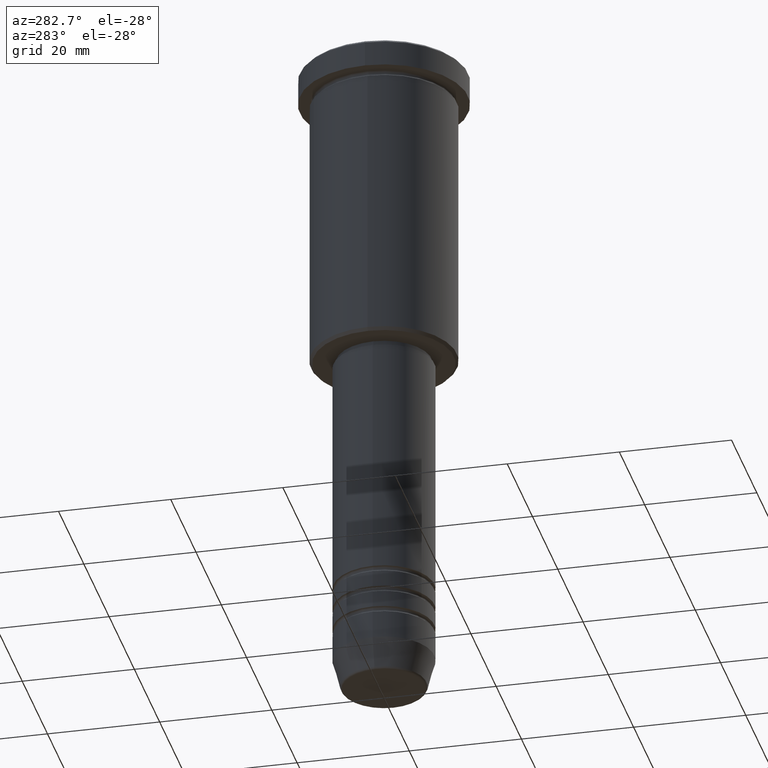
[diagram: clean part render]
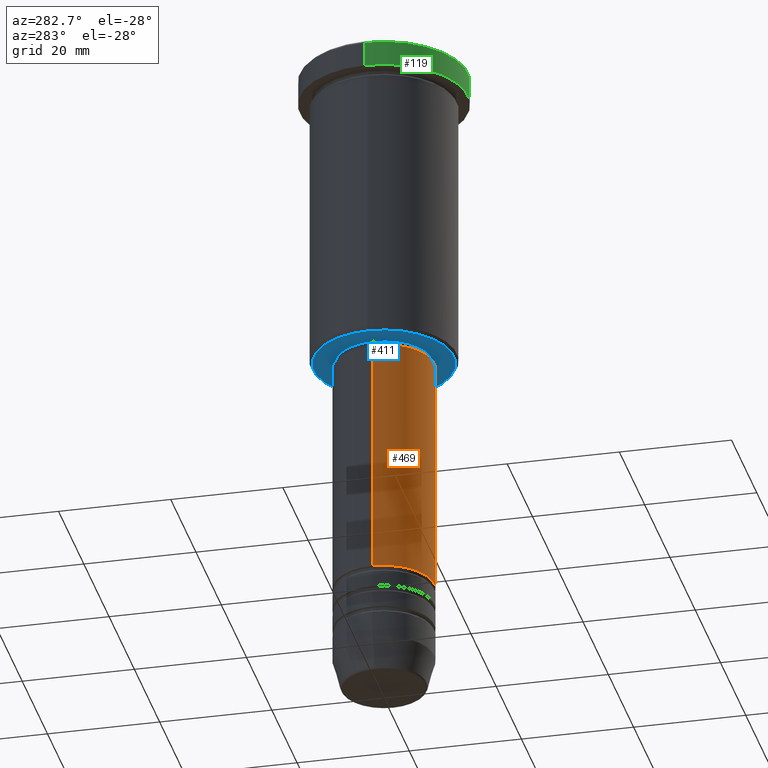
[diagram: same view with three faces highlighted in distinct colors, each labeled with its STEP entity id]
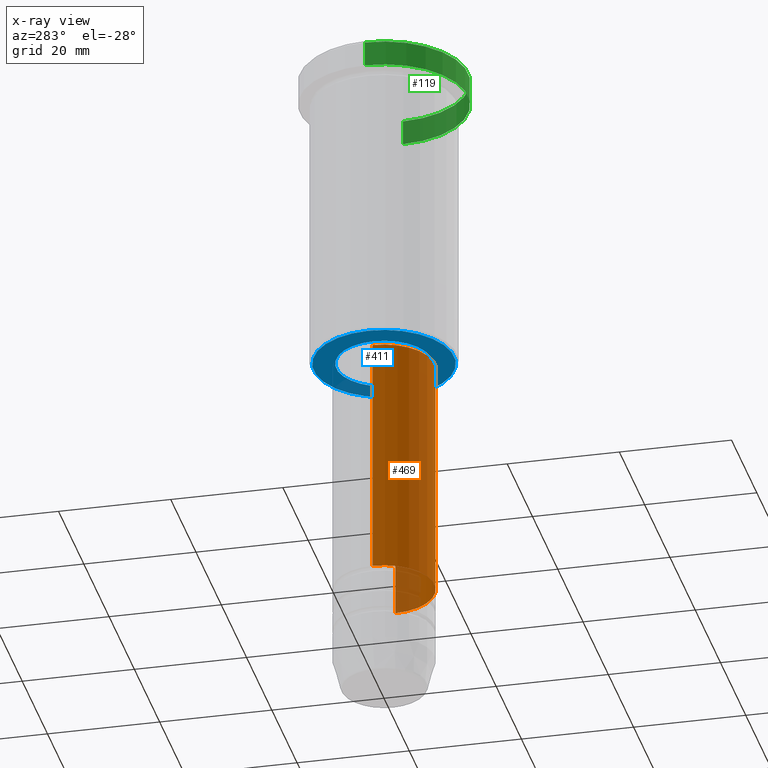
[diagram: x-ray of the same camera — body ghosted, the three highlighted faces saturated]
A machine part, auxiliary view with three faces highlighted in distinct colors.
The next image is the same camera in x-ray (body ghosted, the three faces saturated) — at least one of them is partly hidden behind the body in this view.
Their STEP definitions:

[orange] entity #469 — the highlighted cylindrical surface (partial cylindrical patch) has radius 9 mm, axis along (-0, -0, 1).
#29 = VECTOR ( 'NONE', #319, 1000.000000000000000 ) ;
#46 = LINE ( 'NONE', #405, #29 ) ;
#72 = DIRECTION ( 'NONE',  ( -0.000000000000000000, -0.000000000000000000, 1.000000000000000000 ) ) ;
#77 = CARTESIAN_POINT ( 'NONE',  ( -8.999999999999998224, 1.102182119232617714E-15, -57.00000000000002842 ) ) ;
#143 = EDGE_CURVE ( 'NONE', #553, #1104, #785, .T. ) ;
#144 = DIRECTION ( 'NONE',  ( -0.000000000000000000, -0.000000000000000000, 1.000000000000000000 ) ) ;
#216 = LINE ( 'NONE', #753, #494 ) ;
#233 = EDGE_CURVE ( 'NONE', #1092, #1104, #46, .T. ) ;
#308 = DIRECTION ( 'NONE',  ( -0.000000000000000000, -0.000000000000000000, 1.000000000000000000 ) ) ;
#319 = DIRECTION ( 'NONE',  ( -0.000000000000000000, -0.000000000000000000, 1.000000000000000000 ) ) ;
#337 = AXIS2_PLACEMENT_3D ( 'NONE', #866, #144, #417 ) ;
#348 = ORIENTED_EDGE ( 'NONE', *, *, #143, .F. ) ;
#349 = CARTESIAN_POINT ( 'NONE',  ( -9.000000000000001776, 1.102182119232617911E-15, -100.4999999999999716 ) ) ;
#357 = ORIENTED_EDGE ( 'NONE', *, *, #507, .T. ) ;
#394 = FACE_OUTER_BOUND ( 'NONE', #518, .T. ) ;
#405 = CARTESIAN_POINT ( 'NONE',  ( 9.000000000000000000, 0.000000000000000000, 0.000000000000000000 ) ) ;
#417 = DIRECTION ( 'NONE',  ( 1.000000000000000000, 0.000000000000000000, 0.000000000000000000 ) ) ;
#426 = CARTESIAN_POINT ( 'NONE',  ( 0.000000000000000000, 0.000000000000000000, -100.4999999999999716 ) ) ;
#469 = ADVANCED_FACE ( 'NONE', ( #394 ), #1048, .T. ) ;
#494 = VECTOR ( 'NONE', #929, 1000.000000000000000 ) ;
#507 = EDGE_CURVE ( 'NONE', #1026, #1092, #981, .T. ) ;
#518 = EDGE_LOOP ( 'NONE', ( #872, #357, #768, #348 ) ) ;
#534 = CARTESIAN_POINT ( 'NONE',  ( 8.999999999999998224, 0.000000000000000000, -57.00000000000002842 ) ) ;
#553 = VERTEX_POINT ( 'NONE', #77 ) ;
#621 = AXIS2_PLACEMENT_3D ( 'NONE', #426, #72, #982 ) ;
#753 = CARTESIAN_POINT ( 'NONE',  ( -9.000000000000000000, 1.102182119232617714E-15, 0.000000000000000000 ) ) ;
#768 = ORIENTED_EDGE ( 'NONE', *, *, #233, .T. ) ;
#785 = CIRCLE ( 'NONE', #879, 8.999999999999998224 ) ;
#835 = EDGE_CURVE ( 'NONE', #1026, #553, #216, .T. ) ;
#866 = CARTESIAN_POINT ( 'NONE',  ( 0.000000000000000000, 0.000000000000000000, 0.000000000000000000 ) ) ;
#867 = CARTESIAN_POINT ( 'NONE',  ( 0.000000000000000000, 0.000000000000000000, -57.00000000000002842 ) ) ;
#872 = ORIENTED_EDGE ( 'NONE', *, *, #835, .F. ) ;
#879 = AXIS2_PLACEMENT_3D ( 'NONE', #867, #308, #1042 ) ;
#929 = DIRECTION ( 'NONE',  ( -0.000000000000000000, -0.000000000000000000, 1.000000000000000000 ) ) ;
#981 = CIRCLE ( 'NONE', #621, 9.000000000000001776 ) ;
#982 = DIRECTION ( 'NONE',  ( 1.000000000000000000, 0.000000000000000000, 0.000000000000000000 ) ) ;
#991 = CARTESIAN_POINT ( 'NONE',  ( 9.000000000000001776, 0.000000000000000000, -100.4999999999999716 ) ) ;
#1026 = VERTEX_POINT ( 'NONE', #349 ) ;
#1042 = DIRECTION ( 'NONE',  ( 1.000000000000000000, 0.000000000000000000, 0.000000000000000000 ) ) ;
#1048 = CYLINDRICAL_SURFACE ( 'NONE', #337, 9.000000000000000000 ) ;
#1092 = VERTEX_POINT ( 'NONE', #991 ) ;
#1104 = VERTEX_POINT ( 'NONE', #534 ) ;

[blue] entity #411 — the highlighted planar face has unit normal (0, 0, -1).
#63 = VERTEX_POINT ( 'NONE', #384 ) ;
#74 = DIRECTION ( 'NONE',  ( -0.000000000000000000, -0.000000000000000000, 1.000000000000000000 ) ) ;
#80 = CARTESIAN_POINT ( 'NONE',  ( 0.000000000000000000, 0.000000000000000000, -56.00000000000000711 ) ) ;
#107 = EDGE_CURVE ( 'NONE', #615, #63, #1172, .T. ) ;
#141 = CARTESIAN_POINT ( 'NONE',  ( 0.000000000000000000, 0.000000000000000000, -56.00000000000000711 ) ) ;
#157 = CARTESIAN_POINT ( 'NONE',  ( 12.49999999999999645, 0.000000000000000000, -56.00000000000000711 ) ) ;
#159 = VERTEX_POINT ( 'NONE', #497 ) ;
#166 = AXIS2_PLACEMENT_3D ( 'NONE', #849, #402, #686 ) ;
#195 = DIRECTION ( 'NONE',  ( -1.000000000000000000, 0.000000000000000000, 0.000000000000000000 ) ) ;
#223 = AXIS2_PLACEMENT_3D ( 'NONE', #141, #1133, #593 ) ;
#227 = EDGE_CURVE ( 'NONE', #159, #315, #468, .T. ) ;
#230 = ORIENTED_EDGE ( 'NONE', *, *, #1051, .T. ) ;
#240 = DIRECTION ( 'NONE',  ( -1.000000000000000000, 0.000000000000000000, -0.000000000000000000 ) ) ;
#265 = CIRCLE ( 'NONE', #883, 8.500000000000000000 ) ;
#300 = FACE_OUTER_BOUND ( 'NONE', #798, .T. ) ;
#313 = DIRECTION ( 'NONE',  ( 0.000000000000000000, 0.000000000000000000, -1.000000000000000000 ) ) ;
#315 = VERTEX_POINT ( 'NONE', #638 ) ;
#330 = ORIENTED_EDGE ( 'NONE', *, *, #227, .T. ) ;
#384 = CARTESIAN_POINT ( 'NONE',  ( -12.49999999999999645, 1.561424668912875308E-15, -56.00000000000000711 ) ) ;
#402 = DIRECTION ( 'NONE',  ( 0.000000000000000000, 0.000000000000000000, -1.000000000000000000 ) ) ;
#411 = ADVANCED_FACE ( 'NONE', ( #300, #457 ), #1139, .T. ) ;
#443 = EDGE_LOOP ( 'NONE', ( #230, #330 ) ) ;
#456 = EDGE_CURVE ( 'NONE', #63, #615, #1118, .T. ) ;
#457 = FACE_BOUND ( 'NONE', #443, .T. ) ;
#468 = CIRCLE ( 'NONE', #223, 8.500000000000000000 ) ;
#497 = CARTESIAN_POINT ( 'NONE',  ( -8.500000000000000000, 1.040949779275250140E-15, -56.00000000000000711 ) ) ;
#528 = ORIENTED_EDGE ( 'NONE', *, *, #456, .T. ) ;
#591 = ORIENTED_EDGE ( 'NONE', *, *, #107, .T. ) ;
#593 = DIRECTION ( 'NONE',  ( 1.000000000000000000, 0.000000000000000000, 0.000000000000000000 ) ) ;
#615 = VERTEX_POINT ( 'NONE', #157 ) ;
#620 = AXIS2_PLACEMENT_3D ( 'NONE', #843, #661, #195 ) ;
#635 = DIRECTION ( 'NONE',  ( 1.000000000000000000, 0.000000000000000000, 0.000000000000000000 ) ) ;
#638 = CARTESIAN_POINT ( 'NONE',  ( 8.500000000000000000, 0.000000000000000000, -56.00000000000000711 ) ) ;
#661 = DIRECTION ( 'NONE',  ( 0.000000000000000000, 0.000000000000000000, -1.000000000000000000 ) ) ;
#686 = DIRECTION ( 'NONE',  ( -1.000000000000000000, 0.000000000000000000, 0.000000000000000000 ) ) ;
#798 = EDGE_LOOP ( 'NONE', ( #591, #528 ) ) ;
#843 = CARTESIAN_POINT ( 'NONE',  ( 0.000000000000000000, 0.000000000000000000, -56.00000000000000711 ) ) ;
#849 = CARTESIAN_POINT ( 'NONE',  ( 0.000000000000000000, 0.000000000000000000, -56.00000000000000711 ) ) ;
#883 = AXIS2_PLACEMENT_3D ( 'NONE', #80, #74, #635 ) ;
#935 = CARTESIAN_POINT ( 'NONE',  ( 0.000000000000000000, 13.00000000000000000, -56.00000000000000711 ) ) ;
#960 = AXIS2_PLACEMENT_3D ( 'NONE', #935, #313, #240 ) ;
#1051 = EDGE_CURVE ( 'NONE', #315, #159, #265, .T. ) ;
#1118 = CIRCLE ( 'NONE', #166, 12.49999999999999645 ) ;
#1133 = DIRECTION ( 'NONE',  ( -0.000000000000000000, -0.000000000000000000, 1.000000000000000000 ) ) ;
#1139 = PLANE ( 'NONE',  #960 ) ;
#1172 = CIRCLE ( 'NONE', #620, 12.49999999999999645 ) ;

[green] entity #119 — the highlighted cylindrical surface (partial cylindrical patch) has radius 15 mm, axis along (-0, -0, 1).
#32 = DIRECTION ( 'NONE',  ( -0.000000000000000000, -0.000000000000000000, 1.000000000000000000 ) ) ;
#61 = CARTESIAN_POINT ( 'NONE',  ( 15.00000000000000000, 0.000000000000000000, -4.999999999999999112 ) ) ;
#119 = ADVANCED_FACE ( 'NONE', ( #649 ), #283, .T. ) ;
#142 = ORIENTED_EDGE ( 'NONE', *, *, #365, .F. ) ;
#199 = DIRECTION ( 'NONE',  ( 0.000000000000000000, 0.000000000000000000, -1.000000000000000000 ) ) ;
#200 = DIRECTION ( 'NONE',  ( 1.000000000000000000, 0.000000000000000000, 0.000000000000000000 ) ) ;
#220 = VERTEX_POINT ( 'NONE', #61 ) ;
#245 = CARTESIAN_POINT ( 'NONE',  ( 15.00000000000000000, 0.000000000000000000, -0.4999999999999970024 ) ) ;
#253 = DIRECTION ( 'NONE',  ( -0.000000000000000000, -0.000000000000000000, 1.000000000000000000 ) ) ;
#283 = CYLINDRICAL_SURFACE ( 'NONE', #408, 15.00000000000000000 ) ;
#318 = AXIS2_PLACEMENT_3D ( 'NONE', #1069, #253, #614 ) ;
#365 = EDGE_CURVE ( 'NONE', #802, #815, #913, .T. ) ;
#400 = EDGE_CURVE ( 'NONE', #829, #815, #900, .T. ) ;
#408 = AXIS2_PLACEMENT_3D ( 'NONE', #1014, #32, #200 ) ;
#465 = DIRECTION ( 'NONE',  ( -0.000000000000000000, -0.000000000000000000, 1.000000000000000000 ) ) ;
#577 = ORIENTED_EDGE ( 'NONE', *, *, #1016, .T. ) ;
#607 = CARTESIAN_POINT ( 'NONE',  ( -15.00000000000000000, 1.836970198721029589E-15, -0.4999999999999970024 ) ) ;
#614 = DIRECTION ( 'NONE',  ( 1.000000000000000000, 0.000000000000000000, 0.000000000000000000 ) ) ;
#631 = LINE ( 'NONE', #1178, #1137 ) ;
#632 = EDGE_LOOP ( 'NONE', ( #142, #987, #577, #891 ) ) ;
#636 = EDGE_CURVE ( 'NONE', #802, #220, #846, .T. ) ;
#649 = FACE_OUTER_BOUND ( 'NONE', #632, .T. ) ;
#660 = CARTESIAN_POINT ( 'NONE',  ( -15.00000000000000000, 1.836970198721029589E-15, 0.000000000000000000 ) ) ;
#683 = AXIS2_PLACEMENT_3D ( 'NONE', #1012, #199, #1117 ) ;
#802 = VERTEX_POINT ( 'NONE', #1124 ) ;
#807 = VECTOR ( 'NONE', #465, 1000.000000000000000 ) ;
#815 = VERTEX_POINT ( 'NONE', #607 ) ;
#829 = VERTEX_POINT ( 'NONE', #245 ) ;
#846 = CIRCLE ( 'NONE', #318, 15.00000000000000000 ) ;
#891 = ORIENTED_EDGE ( 'NONE', *, *, #400, .T. ) ;
#900 = CIRCLE ( 'NONE', #683, 15.00000000000000000 ) ;
#913 = LINE ( 'NONE', #660, #807 ) ;
#978 = DIRECTION ( 'NONE',  ( -0.000000000000000000, -0.000000000000000000, 1.000000000000000000 ) ) ;
#987 = ORIENTED_EDGE ( 'NONE', *, *, #636, .T. ) ;
#1012 = CARTESIAN_POINT ( 'NONE',  ( 0.000000000000000000, 0.000000000000000000, -0.4999999999999970024 ) ) ;
#1014 = CARTESIAN_POINT ( 'NONE',  ( 0.000000000000000000, 0.000000000000000000, 0.000000000000000000 ) ) ;
#1016 = EDGE_CURVE ( 'NONE', #220, #829, #631, .T. ) ;
#1069 = CARTESIAN_POINT ( 'NONE',  ( 0.000000000000000000, 0.000000000000000000, -4.999999999999999112 ) ) ;
#1117 = DIRECTION ( 'NONE',  ( 1.000000000000000000, 0.000000000000000000, 0.000000000000000000 ) ) ;
#1124 = CARTESIAN_POINT ( 'NONE',  ( -15.00000000000000000, 1.836970198721029589E-15, -4.999999999999999112 ) ) ;
#1137 = VECTOR ( 'NONE', #978, 1000.000000000000000 ) ;
#1178 = CARTESIAN_POINT ( 'NONE',  ( 15.00000000000000000, 0.000000000000000000, 0.000000000000000000 ) ) ;